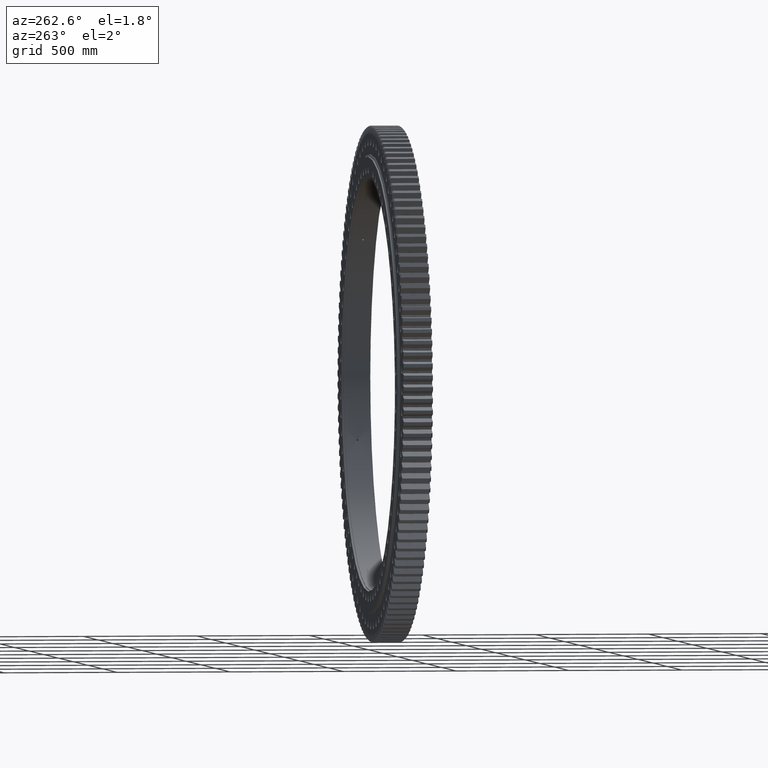
[diagram: clean part render]
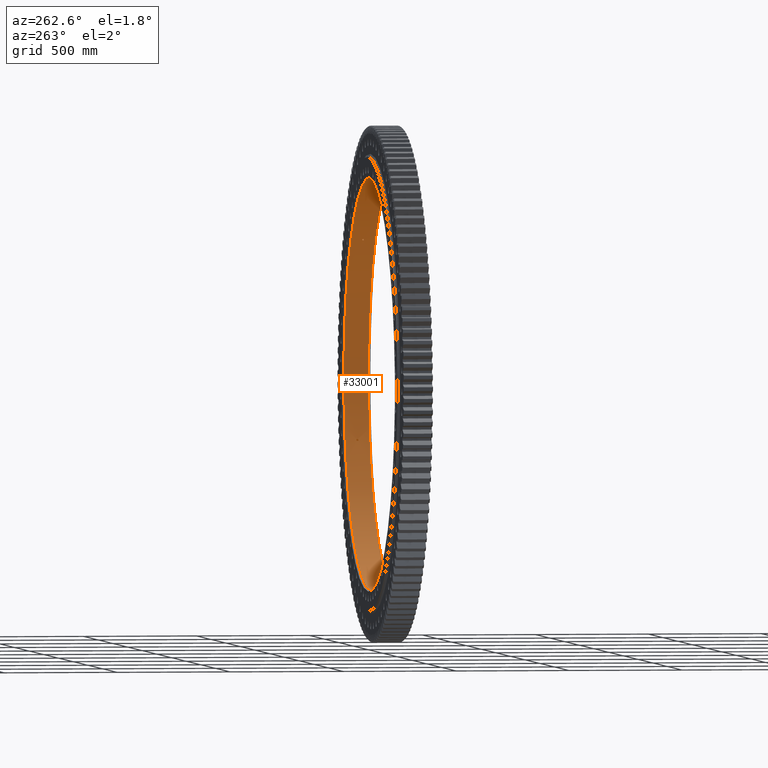
[diagram: same view with one face highlighted and labeled with its STEP entity id]
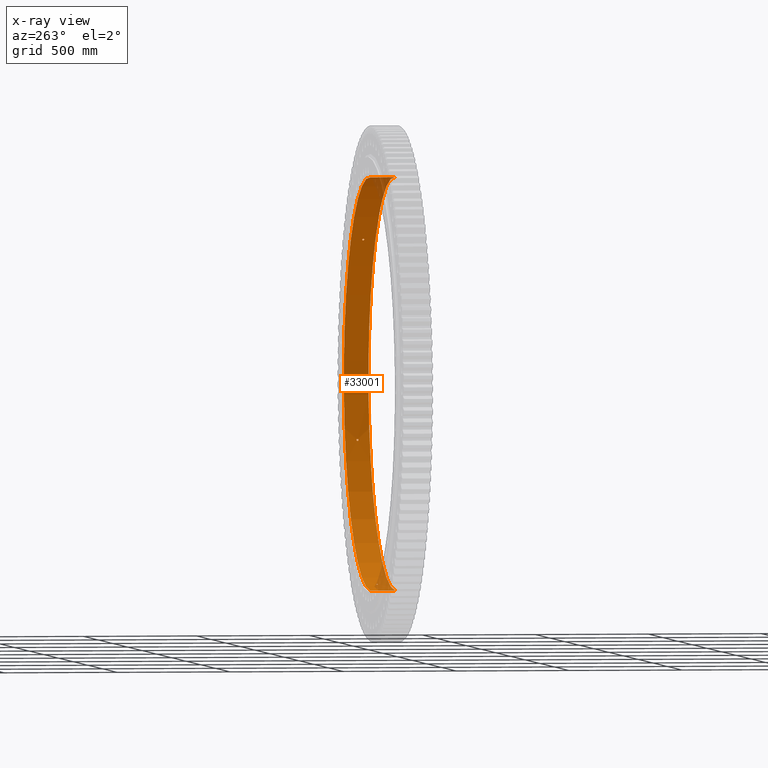
[diagram: x-ray of the same camera — body ghosted, the highlighted face saturated]
A machine part, auxiliary view. The second image highlights one B-rep face of the part: STEP entity #33001.
The next image is the same camera in x-ray: the body ghosted, the highlighted face saturated — about 5% of this face is hidden behind the body in this view.
In plain terms, the highlighted cylindrical surface (partial cylindrical patch) has radius 907.5 mm, axis along (-0, 1, -0).
Its self-contained STEP definition (entity closure, byte-faithful):
#70 = DIRECTION ( 'NONE',  ( 0.0000000000000000000, 0.0000000000000000000, 1.000000000000000000 ) ) ;
#84 = CARTESIAN_POINT ( 'NONE',  ( 667.2211728100787700, -3.577391815854714900, 615.1196765090398900 ) ) ;
#221 = ORIENTED_EDGE ( 'NONE', *, *, #25455, .T. ) ;
#248 = CARTESIAN_POINT ( 'NONE',  ( 670.9272961274414200, -3.581694275460510100, 611.0751779239532200 ) ) ;
#547 = CARTESIAN_POINT ( 'NONE',  ( 671.8046610760060300, 1.995678374227336100, 610.1104491128613700 ) ) ;
#593 = CARTESIAN_POINT ( 'NONE',  ( 192.4688175080640600, 1.995678374227333900, -886.8551274290478000 ) ) ;
#698 = CARTESIAN_POINT ( 'NONE',  ( 668.6804617742004700, 4.470845106206326100, 613.5330254549539900 ) ) ;
#752 = CARTESIAN_POINT ( 'NONE',  ( 196.9949552176105100, 4.470845106206327900, -885.8607796382452800 ) ) ;
#811 = VERTEX_POINT ( 'NONE', #25375 ) ;
#852 = CARTESIAN_POINT ( 'NONE',  ( 666.0507917688385100, 0.5919602825530700900, 616.3867260828498000 ) ) ;
#906 = CARTESIAN_POINT ( 'NONE',  ( 200.7811674588448900, 0.5919602825530616600, -885.0102689239798800 ) ) ;
#1175 = EDGE_CURVE ( 'NONE', #811, #17550, #36876, .T. ) ;
#1315 = CARTESIAN_POINT ( 'NONE',  ( 866.5119588961893000, -2.972153781786546200, -269.6540710962706800 ) ) ;
#1475 = CARTESIAN_POINT ( 'NONE',  ( 864.8969229614015100, -4.045624644837601200, -274.7901692872510500 ) ) ;
#1544 = CARTESIAN_POINT ( 'NONE',  ( 864.2045563682553400, 1.450668166330355800, -276.9598301423727700 ) ) ;
#1674 = CARTESIAN_POINT ( 'NONE',  ( 865.5859129809945200, 4.500103743723852500, -272.6121116075910900 ) ) ;
#1835 = CARTESIAN_POINT ( 'NONE',  ( 866.7979077964694200, 1.168558873226582800, -268.7334001323513300 ) ) ;
#2703 = CARTESIAN_POINT ( 'NONE',  ( 197.8381517343056500, -4.268830616815535000, -885.6728457622803000 ) ) ;
#2860 = CARTESIAN_POINT ( 'NONE',  ( 192.9282412334280300, -2.750357013386715000, -886.7553049025465300 ) ) ;
#2919 = EDGE_LOOP ( 'NONE', ( #221, #14377 ) ) ;
#3083 = B_SPLINE_CURVE_WITH_KNOTS ( 'NONE', 3,
 ( #11465, #8106, #41356, #21449, #1544, #24847, #4870, #28188, #8259, #31501, #11592, #34821, #14934, #38179, #18248, #41511, #21620, #1674, #24976, #5036, #28332, #8383, #31646, #11749, #34950, #15076, #38339, #18404, #41640, #21775, #1835, #25112, #5177, #28489 ),
 .UNSPECIFIED., .F., .F.,
 ( 4, 2, 2, 2, 2, 2, 2, 2, 2, 2, 2, 2, 2, 2, 2, 2, 4 ),
 ( 2.512242528640803700E-017, 0.0008793174597105349500, 0.001758634919421044700, 0.002637952379131555400, 0.003517269838842066100, 0.004396587298552576300, 0.005275904758263087400, 0.006155222217973597600, 0.007034539677684108700, 0.007913857137394618100, 0.008793174597105126600, 0.009672492056815636800, 0.01055180951652614700, 0.01143112697623665700, 0.01231044443594716600, 0.01318976189565767600, 0.01406907935536818800 ),
 .UNSPECIFIED. ) ;
#3229 = B_SPLINE_CURVE_WITH_KNOTS ( 'NONE', 3,
 ( #37053, #30369, #7113, #40413, #20476, #547, #23880, #3922, #27201, #7261, #30526, #10628, #33833, #13982, #37215, #17281, #40553, #20630, #698, #23998, #4068, #27351, #7394, #30669, #10782, #33976, #14105, #37370, #17429, #40683, #20770, #852, #24143, #4186 ),
 .UNSPECIFIED., .F., .F.,
 ( 4, 2, 2, 2, 2, 2, 2, 2, 2, 2, 2, 2, 2, 2, 2, 2, 4 ),
 ( 3.062279635763591100E-017, 0.0008793174597105263800, 0.001758634919421022200, 0.002637952379131517200, 0.003517269838842012300, 0.004396587298552506000, 0.005275904758263001500, 0.006155222217973496100, 0.007034539677683991600, 0.007913857137394488000, 0.008793174597104982600, 0.009672492056815480700, 0.01055180951652597500, 0.01143112697623647200, 0.01231044443594696600, 0.01318976189565746300, 0.01406907935536795700 ),
 .UNSPECIFIED. ) ;
#3470 = CARTESIAN_POINT ( 'NONE',  ( 667.7277792492287700, -4.042877831916333900, 614.5697168110343700 ) ) ;
#3615 = CARTESIAN_POINT ( 'NONE',  ( 671.3631533650924400, -2.976676943403616400, 610.5962737434192600 ) ) ;
#3922 = CARTESIAN_POINT ( 'NONE',  ( 671.4920404737667900, 2.743367053977650000, 610.4545161206533500 ) ) ;
#3974 = CARTESIAN_POINT ( 'NONE',  ( 192.9230985785353600, 2.743367053977607800, -886.7564235496583900 ) ) ;
#4068 = CARTESIAN_POINT ( 'NONE',  ( 668.1002946109420000, 4.270949597112233300, 614.1647340520219100 ) ) ;
#4107 = CARTESIAN_POINT ( 'NONE',  ( 197.8321144920893500, 4.270949597112228900, -885.6741944349551000 ) ) ;
#4186 = CARTESIAN_POINT ( 'NONE',  ( 666.0308013488261200, 1.386433358244330000E-008, 616.4083238038244900 ) ) ;
#4227 = CARTESIAN_POINT ( 'NONE',  ( 200.8098668438789500, 1.386433358244329800E-008, -885.0037555729035100 ) ) ;
#4404 = DIRECTION ( 'NONE',  ( -0.0000000000000000000, 1.000000000000000000, -2.727064569436389700E-017 ) ) ;
#4521 = CARTESIAN_POINT ( 'NONE',  ( 866.8406681927084500, -0.2936295937033693300, -268.5954317690802800 ) ) ;
#4662 = CARTESIAN_POINT ( 'NONE',  ( 866.3198526295333300, -3.577391815854745100, -270.2706473418574000 ) ) ;
#4791 = CARTESIAN_POINT ( 'NONE',  ( 864.6702757679595400, -3.581694275460515400, -275.5024935767944500 ) ) ;
#4870 = CARTESIAN_POINT ( 'NONE',  ( 864.3156358126916500, 2.254168072660464700, -276.6130119163357800 ) ) ;
#5036 = CARTESIAN_POINT ( 'NONE',  ( 865.8484435542253600, 4.355942463367350500, -271.7771257431217600 ) ) ;
#5177 = CARTESIAN_POINT ( 'NONE',  ( 866.8406681927089000, 0.2936959049994076800, -268.5954317690803900 ) ) ;
#5323 = ORIENTED_EDGE ( 'NONE', *, *, #29451, .T. ) ;
#5333 = CARTESIAN_POINT ( 'NONE',  ( 666.0308013488261200, 1.386433358244330000E-008, 616.4083238038244900 ) ) ;
#5605 = FACE_BOUND ( 'NONE', #31904, .T. ) ;
#5784 = CARTESIAN_POINT ( 'NONE',  ( 0.0000000000000000000, -53.99999999999999300, 907.5000000000000000 ) ) ;
#5913 = CARTESIAN_POINT ( 'NONE',  ( 200.8098668438789500, 1.386433358244329800E-008, -885.0037555729035100 ) ) ;
#6041 = CARTESIAN_POINT ( 'NONE',  ( 0.0000000000000000000, 54.99999999999984400, 907.5000000000000000 ) ) ;
#6057 = EDGE_CURVE ( 'NONE', #11412, #811, #10582, .T. ) ;
#6077 = CARTESIAN_POINT ( 'NONE',  ( 196.9974198342595500, -4.470446199383379900, -885.8602312391857400 ) ) ;
#6212 = CARTESIAN_POINT ( 'NONE',  ( 192.4696080708756900, -1.997034175586931200, -886.8549557907997500 ) ) ;
#6684 = VERTEX_POINT ( 'NONE', #5784 ) ;
#6791 = CARTESIAN_POINT ( 'NONE',  ( 668.2897468992695200, -4.355729318804304000, 613.9585872856650900 ) ) ;
#6933 = CARTESIAN_POINT ( 'NONE',  ( 671.7096784108341600, -2.259570858818499100, 610.2150317449131800 ) ) ;
#7113 = CARTESIAN_POINT ( 'NONE',  ( 672.0915085728017900, 0.5896827707127979500, 609.7944386200695100 ) ) ;
#7261 = CARTESIAN_POINT ( 'NONE',  ( 671.0846603473279400, 3.390113919888732700, 610.9023422460233000 ) ) ;
#7304 = CARTESIAN_POINT ( 'NONE',  ( 193.5146174428034300, 3.390113919888723800, -886.6275350738499100 ) ) ;
#7394 = CARTESIAN_POINT ( 'NONE',  ( 667.5529261211266900, 3.904602537100674700, 614.7596280565813900 ) ) ;
#7446 = CARTESIAN_POINT ( 'NONE',  ( 198.6209920575047100, 3.904602537100659600, -885.4976064198236800 ) ) ;
#7609 = DIRECTION ( 'NONE',  ( -0.0000000000000000000, 1.000000000000000000, -2.727064569436389700E-017 ) ) ;
#7625 = CARTESIAN_POINT ( 'NONE',  ( 0.0000000000000000000, 31.02910628019326800, 907.5000000000000000 ) ) ;
#7642 = DIRECTION ( 'NONE',  ( 0.0000000000000000000, -1.000000000000000000, 0.0000000000000000000 ) ) ;
#8013 = CARTESIAN_POINT ( 'NONE',  ( 866.0968767795781100, -4.042877831916303700, -270.9843612368847500 ) ) ;
#8106 = CARTESIAN_POINT ( 'NONE',  ( 864.1343159971700100, 0.2973259736361877900, -277.1788843258142900 ) ) ;
#8170 = CARTESIAN_POINT ( 'NONE',  ( 864.4734612004637000, -2.976676943403588900, -276.1194091072907200 ) ) ;
#8236 = EDGE_CURVE ( 'NONE', #31822, #23170, #3229, .T. ) ;
#8259 = CARTESIAN_POINT ( 'NONE',  ( 864.4730118256154600, 2.974980547349849800, -276.1208158403039200 ) ) ;
#8383 = CARTESIAN_POINT ( 'NONE',  ( 866.0952601633775900, 4.045567043084804300, -270.9895284599556400 ) ) ;
#8488 = EDGE_CURVE ( 'NONE', #38389, #13445, #16616, .T. ) ;
#9162 = VERTEX_POINT ( 'NONE', #30893 ) ;
#9311 = CARTESIAN_POINT ( 'NONE',  ( 200.5856543330591000, -1.449882427493610200, -885.0546072599011000 ) ) ;
#9435 = CARTESIAN_POINT ( 'NONE',  ( 196.1329898898535800, -4.500248244149611700, -886.0520234745547400 ) ) ;
#9582 = CARTESIAN_POINT ( 'NONE',  ( 192.1655185107750900, -1.173647320705858200, -886.9208909961605500 ) ) ;
#10046 = CARTESIAN_POINT ( 'NONE',  ( 666.1282564387308900, -1.165408985735074900, 616.3030093075271900 ) ) ;
#10189 = CARTESIAN_POINT ( 'NONE',  ( 668.8761794298187600, -4.499748536801098100, 613.3196512568754300 ) ) ;
#10344 = CARTESIAN_POINT ( 'NONE',  ( 671.9552764981847300, -1.455744730754474600, 609.9445622578380200 ) ) ;
#10528 = CARTESIAN_POINT ( 'NONE',  ( 192.0232027797995000, 1.386434169333851500E-008, -886.9517120983464300 ) ) ;
#10582 = LINE ( 'NONE', #27132, #19388 ) ;
#10628 = CARTESIAN_POINT ( 'NONE',  ( 670.6007203301650200, 3.905345695955502600, 611.4335486451077500 ) ) ;
#10683 = CARTESIAN_POINT ( 'NONE',  ( 194.2166256876450300, 3.905345695955512400, -886.4740339246212700 ) ) ;
#10782 = CARTESIAN_POINT ( 'NONE',  ( 667.0683646142787200, 3.392751207313588600, 615.2853736852224500 ) ) ;
#10838 = CARTESIAN_POINT ( 'NONE',  ( 199.3185818812606300, 3.392751207313584600, -885.3408366595180000 ) ) ;
#11041 = EDGE_CURVE ( 'NONE', #23170, #31822, #31121, .T. ) ;
#11400 = CARTESIAN_POINT ( 'NONE',  ( 865.8486069106257900, -4.355729318804276500, -271.7766042606095300 ) ) ;
#11412 = VERTEX_POINT ( 'NONE', #26231 ) ;
#11465 = CARTESIAN_POINT ( 'NONE',  ( 864.1343159971698900, 1.386434988001424900E-008, -277.1788843258142900 ) ) ;
#11518 = CARTESIAN_POINT ( 'NONE',  ( 864.3165584676388600, -2.259570858818472900, -276.6101295992037900 ) ) ;
#11592 = CARTESIAN_POINT ( 'NONE',  ( 864.6681059691369500, 3.576390744989199600, -275.5093048080790900 ) ) ;
#11749 = CARTESIAN_POINT ( 'NONE',  ( 866.3192884625893800, 3.578756317312463700, -270.2724549391174900 ) ) ;
#12623 = CARTESIAN_POINT ( 'NONE',  ( 200.2314202219853900, -2.252548628519183400, -885.1348233113386600 ) ) ;
#12781 = CARTESIAN_POINT ( 'NONE',  ( 195.2848078206290600, -4.357379624262325300, -886.2393449223874300 ) ) ;
#12936 = CARTESIAN_POINT ( 'NONE',  ( 192.0232027797995900, -0.2972588430780981300, -886.9517120983468900 ) ) ;
#13380 = CARTESIAN_POINT ( 'NONE',  ( 666.3391077090486800, -1.991443744958442300, 616.0750409598724700 ) ) ;
#13431 = FACE_BOUND ( 'NONE', #29375, .T. ) ;
#13445 = VERTEX_POINT ( 'NONE', #14626 ) ;
#13516 = CARTESIAN_POINT ( 'NONE',  ( 669.4753320100005600, -4.471227435655848100, 612.6655796469247000 ) ) ;
#13647 = CARTESIAN_POINT ( 'NONE',  ( 672.0915151301877600, -0.5914352569063667800, 609.7944314930624600 ) ) ;
#13982 = CARTESIAN_POINT ( 'NONE',  ( 670.0590709117092300, 4.269502541424985000, 612.0270948365196100 ) ) ;
#14026 = CARTESIAN_POINT ( 'NONE',  ( 195.0014764769551900, 4.269502541425003600, -886.3017248639995400 ) ) ;
#14105 = CARTESIAN_POINT ( 'NONE',  ( 666.6568177524139900, 2.744954435737160000, 615.7312432379786700 ) ) ;
#14147 = CARTESIAN_POINT ( 'NONE',  ( 199.9104896716538100, 2.744954435737206700, -885.2073613986734700 ) ) ;
#14377 = ORIENTED_EDGE ( 'NONE', *, *, #28059, .T. ) ;
#14559 = CARTESIAN_POINT ( 'NONE',  ( 866.7981907084806600, -1.165408985735065800, -268.7324876008145800 ) ) ;
#14626 = CARTESIAN_POINT ( 'NONE',  ( 192.0232027797995000, 1.386434169333851500E-008, -886.9517120983464300 ) ) ;
#14692 = CARTESIAN_POINT ( 'NONE',  ( 865.5884883435752500, -4.499748536801099000, -272.6039377440658300 ) ) ;
#14854 = CARTESIAN_POINT ( 'NONE',  ( 864.2051240645586200, -1.455744730754449500, -276.9580585255077900 ) ) ;
#14934 = CARTESIAN_POINT ( 'NONE',  ( 864.8967134778150700, 4.045122941605314700, -274.7908265214961700 ) ) ;
#15076 = CARTESIAN_POINT ( 'NONE',  ( 866.5118948205781600, 2.972768528701731600, -269.6542791697981400 ) ) ;
#15970 = CARTESIAN_POINT ( 'NONE',  ( 199.7287036448271100, -2.972153781786560000, -885.2484046352530000 ) ) ;
#16113 = CARTESIAN_POINT ( 'NONE',  ( 194.4731941677130500, -4.045624644837619000, -886.4177915831923000 ) ) ;
#16189 = EDGE_CURVE ( 'NONE', #6684, #11412, #33275, .T. ) ;
#16616 = B_SPLINE_CURVE_WITH_KNOTS ( 'NONE', 3,
 ( #5913, #25885, #22517, #29206, #9311, #32514, #12623, #35898, #15970, #39209, #19279, #42575, #22668, #2703, #26030, #6077, #29343, #9435, #32672, #12781, #36023, #16113, #39382, #19426, #42703, #22816, #2860, #26159, #6212, #29508, #9582, #32798, #12936, #36168 ),
 .UNSPECIFIED., .F., .F.,
 ( 4, 2, 2, 2, 2, 2, 2, 2, 2, 2, 2, 2, 2, 2, 2, 2, 4 ),
 ( 0.01406907935536808200, 0.01494819836389204600, 0.01582731737241600800, 0.01670643638093997200, 0.01758555538946393300, 0.01846467439798789600, 0.01934379340651186000, 0.02022291241503582100, 0.02110203142355978500, 0.02198115043208374900, 0.02286026944060771300, 0.02373938844913167600, 0.02461850745765564000, 0.02549762646617960100, 0.02637674547470356100, 0.02725586448322752500, 0.02813498349175148600 ),
 .UNSPECIFIED. ) ;
#16683 = CARTESIAN_POINT ( 'NONE',  ( 666.6568920230838600, -2.745436259879996000, 615.7311632527867000 ) ) ;
#16815 = CARTESIAN_POINT ( 'NONE',  ( 670.0557286285995800, -4.271337888731389800, 612.0307549600860300 ) ) ;
#16911 = ORIENTED_EDGE ( 'NONE', *, *, #6057, .F. ) ;
#16970 = CARTESIAN_POINT ( 'NONE',  ( 672.1111132173670100, 1.386431552185691500E-008, 609.7728277725333300 ) ) ;
#17191 = CARTESIAN_POINT ( 'NONE',  ( 192.0517206450458900, 0.5896827707127838500, -886.9455394018888200 ) ) ;
#17281 = CARTESIAN_POINT ( 'NONE',  ( 669.4757232258704100, 4.471354371842077800, 612.6651535574817400 ) ) ;
#17330 = CARTESIAN_POINT ( 'NONE',  ( 195.8457253813339500, 4.471354371842090300, -886.1155603093053500 ) ) ;
#17429 = CARTESIAN_POINT ( 'NONE',  ( 666.3400424315308300, 1.994552828251700900, 616.0740301369926300 ) ) ;
#17486 = CARTESIAN_POINT ( 'NONE',  ( 200.3657394947260300, 1.994552828251692200, -885.1044193730035700 ) ) ;
#17550 = VERTEX_POINT ( 'NONE', #6041 ) ;
#17888 = CARTESIAN_POINT ( 'NONE',  ( 866.7061899633118900, -1.991443744958425000, -269.0290743311570100 ) ) ;
#18044 = CARTESIAN_POINT ( 'NONE',  ( 865.3216220035548100, -4.471227435655853500, -273.4498549042215200 ) ) ;
#18185 = CARTESIAN_POINT ( 'NONE',  ( 864.1432263243747200, -0.5914352569063382500, -277.1511100241866100 ) ) ;
#18248 = CARTESIAN_POINT ( 'NONE',  ( 865.1462212982281700, 4.355843325294857000, -274.0042885536871600 ) ) ;
#18404 = CARTESIAN_POINT ( 'NONE',  ( 866.6640298671743500, 2.257522974567105500, -269.1648860634526300 ) ) ;
#18541 = AXIS2_PLACEMENT_3D ( 'NONE', #27546, #7609, #30853 ) ;
#18848 = DIRECTION ( 'NONE',  ( -0.0000000000000000000, 1.000000000000000000, -2.727064569436389700E-017 ) ) ;
#19279 = CARTESIAN_POINT ( 'NONE',  ( 199.0986798194511200, -3.577391815854713600, -885.3903238508962700 ) ) ;
#19362 = ORIENTED_EDGE ( 'NONE', *, *, #11041, .T. ) ;
#19388 = VECTOR ( 'NONE', #33766, 1000.000000000000000 ) ;
#19426 = CARTESIAN_POINT ( 'NONE',  ( 193.7429796405146800, -3.581694275460520300, -886.5776715007465300 ) ) ;
#20041 = CARTESIAN_POINT ( 'NONE',  ( 667.0644114270977500, -3.387315498573283200, 615.2896585969275500 ) ) ;
#20191 = CARTESIAN_POINT ( 'NONE',  ( 670.5979708714384100, -3.907537596810096000, 611.4365635344194100 ) ) ;
#20212 = AXIS2_PLACEMENT_3D ( 'NONE', #22252, #18848, #25582 ) ;
#20476 = CARTESIAN_POINT ( 'NONE',  ( 671.9565269152440100, 1.450668166330332200, 609.9431848099853800 ) ) ;
#20529 = CARTESIAN_POINT ( 'NONE',  ( 192.2480294530078900, 1.450668166330330500, -886.9030149523565600 ) ) ;
#20630 = CARTESIAN_POINT ( 'NONE',  ( 668.8819705219882500, 4.500103743723851600, 613.3133339956937100 ) ) ;
#20675 = CARTESIAN_POINT ( 'NONE',  ( 196.7039424590027700, 4.500103743723854200, -885.9254456032839500 ) ) ;
#20770 = CARTESIAN_POINT ( 'NONE',  ( 666.1289052582178600, 1.168558873226575900, 616.3023080327701600 ) ) ;
#20812 = CARTESIAN_POINT ( 'NONE',  ( 200.6690025382481200, 1.168558873226565300, -885.0357081651201300 ) ) ;
#21196 = CYLINDRICAL_SURFACE ( 'NONE', #20212, 907.5000000000000000 ) ;
#21238 = CARTESIAN_POINT ( 'NONE',  ( 866.5672752901977000, -2.745436259879991100, -269.4762224735787900 ) ) ;
#21369 = CARTESIAN_POINT ( 'NONE',  ( 865.0620460071025900, -4.271337888731364000, -274.2699054636183900 ) ) ;
#21449 = CARTESIAN_POINT ( 'NONE',  ( 864.1781377123579700, 1.164864495614477600, -277.0422342669620500 ) ) ;
#21517 = CARTESIAN_POINT ( 'NONE',  ( 864.1343159971698900, 1.386434988001424900E-008, -277.1788843258142900 ) ) ;
#21620 = CARTESIAN_POINT ( 'NONE',  ( 865.4093935523735600, 4.499895718877850100, -273.1719562795649400 ) ) ;
#21775 = CARTESIAN_POINT ( 'NONE',  ( 866.7727214991380200, 1.449115541588771300, -268.8146424990043800 ) ) ;
#22252 = CARTESIAN_POINT ( 'NONE',  ( 0.0000000000000000000, 31.02910628019324300, -1.692367527159823000E-015 ) ) ;
#22517 = CARTESIAN_POINT ( 'NONE',  ( 200.7821091180550500, -0.5854521619952171000, -885.0100552907426800 ) ) ;
#22668 = CARTESIAN_POINT ( 'NONE',  ( 198.3690975303457800, -4.042877831916314300, -885.5540780479178700 ) ) ;
#22685 = VECTOR ( 'NONE', #4404, 1000.000000000000000 ) ;
#22816 = CARTESIAN_POINT ( 'NONE',  ( 193.1103078353679600, -2.976676943403616400, -886.7156828507089600 ) ) ;
#23170 = VERTEX_POINT ( 'NONE', #5333 ) ;
#23221 = CARTESIAN_POINT ( 'NONE',  ( 864.1343159971698900, 1.386434988001424900E-008, -277.1788843258142900 ) ) ;
#23313 = FACE_BOUND ( 'NONE', #2919, .T. ) ;
#23402 = CARTESIAN_POINT ( 'NONE',  ( 667.5527902643526700, -3.904567218162359000, 614.7597759165122400 ) ) ;
#23534 = CARTESIAN_POINT ( 'NONE',  ( 671.0833730105058500, -3.391803603721272400, 610.9037564743821300 ) ) ;
#23807 = ORIENTED_EDGE ( 'NONE', *, *, #25834, .T. ) ;
#23880 = CARTESIAN_POINT ( 'NONE',  ( 671.7117132432185800, 2.254168072660506900, 610.2127915437237100 ) ) ;
#23918 = CARTESIAN_POINT ( 'NONE',  ( 192.6039225694694300, 2.254168072660457600, -886.8258034600585200 ) ) ;
#23998 = CARTESIAN_POINT ( 'NONE',  ( 668.2901168381723700, 4.355942463367343400, 613.9581850736163900 ) ) ;
#24046 = CARTESIAN_POINT ( 'NONE',  ( 197.5583267160496300, 4.355942463367348700, -885.7353108167373000 ) ) ;
#24143 = CARTESIAN_POINT ( 'NONE',  ( 666.0308013488262300, 0.2936959049994049600, 616.4083238038244900 ) ) ;
#24196 = CARTESIAN_POINT ( 'NONE',  ( 200.8098668438790600, 0.2936959049994065100, -885.0037555729037400 ) ) ;
#24604 = CARTESIAN_POINT ( 'NONE',  ( 866.3886807443418500, -3.387315498573243700, -270.0498969579194900 ) ) ;
#24760 = CARTESIAN_POINT ( 'NONE',  ( 864.8185822591837000, -3.907537596810103200, -275.0365967337550000 ) ) ;
#24847 = CARTESIAN_POINT ( 'NONE',  ( 864.2734785840735900, 1.995678374227359400, -276.7446783161874500 ) ) ;
#24976 = CARTESIAN_POINT ( 'NONE',  ( 865.6754169918145900, 4.470845106206330600, -272.3277541832921400 ) ) ;
#25112 = CARTESIAN_POINT ( 'NONE',  ( 866.8319592276874300, 0.5919602825530866400, -268.6235428411307000 ) ) ;
#25375 = CARTESIAN_POINT ( 'NONE',  ( 1.111366970226223000E-013, 54.99999999999984400, -907.5000000000000000 ) ) ;
#25455 = EDGE_CURVE ( 'NONE', #27325, #9162, #3083, .T. ) ;
#25582 = DIRECTION ( 'NONE',  ( 0.0000000000000000000, 2.676157428504165100E-017, 1.000000000000000000 ) ) ;
#25779 = EDGE_LOOP ( 'NONE', ( #16911, #27435, #23807, #35278 ) ) ;
#25834 = EDGE_CURVE ( 'NONE', #6684, #17550, #31491, .T. ) ;
#25885 = CARTESIAN_POINT ( 'NONE',  ( 200.8098668438789500, -0.2936295937033745500, -885.0037555729032900 ) ) ;
#26030 = CARTESIAN_POINT ( 'NONE',  ( 197.5588600113529500, -4.355729318804281800, -885.7351915462735400 ) ) ;
#26159 = CARTESIAN_POINT ( 'NONE',  ( 192.6068800568012600, -2.259570858818511900, -886.8251613441159400 ) ) ;
#26231 = CARTESIAN_POINT ( 'NONE',  ( 1.111366970226223000E-013, -54.00000000000005000, -907.5000000000000000 ) ) ;
#26694 = ORIENTED_EDGE ( 'NONE', *, *, #8488, .T. ) ;
#26754 = CARTESIAN_POINT ( 'NONE',  ( 668.0961080050359400, -4.268830616815551000, 614.1692881208123300 ) ) ;
#26907 = CARTESIAN_POINT ( 'NONE',  ( 671.4885003695039800, -2.750357013386703000, 610.4584104668773500 ) ) ;
#27132 = CARTESIAN_POINT ( 'NONE',  ( 1.111366970226223000E-013, 31.02910628019321800, -907.5000000000000000 ) ) ;
#27201 = CARTESIAN_POINT ( 'NONE',  ( 671.3641469441939800, 2.974980547349812500, 610.5951812068777800 ) ) ;
#27253 = CARTESIAN_POINT ( 'NONE',  ( 193.1088648814179300, 2.974980547349800600, -886.7159970471807400 ) ) ;
#27325 = VERTEX_POINT ( 'NONE', #23221 ) ;
#27351 = CARTESIAN_POINT ( 'NONE',  ( 667.7314458875755500, 4.045567043084816700, 614.5657331688012200 ) ) ;
#27403 = CARTESIAN_POINT ( 'NONE',  ( 198.3638142757990600, 4.045567043084815000, -885.5552616287557200 ) ) ;
#27435 = ORIENTED_EDGE ( 'NONE', *, *, #16189, .F. ) ;
#27546 = CARTESIAN_POINT ( 'NONE',  ( 0.0000000000000000000, -54.00000000000002100, 6.264311039157393800E-016 ) ) ;
#27808 = CARTESIAN_POINT ( 'NONE',  ( 866.8406681927084500, 1.386433358244330000E-008, -268.5954317690802200 ) ) ;
#27963 = CARTESIAN_POINT ( 'NONE',  ( 866.1739783007039900, -3.904567218162381200, -270.7377867778606100 ) ) ;
#28059 = EDGE_CURVE ( 'NONE', #9162, #27325, #41444, .T. ) ;
#28113 = CARTESIAN_POINT ( 'NONE',  ( 864.5998588794095700, -3.391803603721248000, -275.7233708472572900 ) ) ;
#28188 = CARTESIAN_POINT ( 'NONE',  ( 864.4151390523059000, 2.743367053977614500, -276.3019074290061800 ) ) ;
#28332 = CARTESIAN_POINT ( 'NONE',  ( 865.9324091030346200, 4.270949597112218200, -271.5094603829346600 ) ) ;
#28489 = CARTESIAN_POINT ( 'NONE',  ( 866.8406681927084500, 1.386433358244330000E-008, -268.5954317690802200 ) ) ;
#29206 = CARTESIAN_POINT ( 'NONE',  ( 200.6699342697463600, -1.165408985735065100, -885.0354969083408600 ) ) ;
#29343 = CARTESIAN_POINT ( 'NONE',  ( 196.7123089137532200, -4.499748536801097200, -885.9235890009398400 ) ) ;
#29375 = EDGE_LOOP ( 'NONE', ( #36230, #19362 ) ) ;
#29451 = EDGE_CURVE ( 'NONE', #13445, #38389, #35352, .T. ) ;
#29508 = CARTESIAN_POINT ( 'NONE',  ( 192.2498475663703300, -1.455744730754476900, -886.9026207833446700 ) ) ;
#29931 = CARTESIAN_POINT ( 'NONE',  ( 666.0501359274234100, -0.5854521619952226500, 616.3874347670292800 ) ) ;
#30077 = CARTESIAN_POINT ( 'NONE',  ( 668.6787545383593900, -4.470446199383390600, 613.5348856760530200 ) ) ;
#30203 = CARTESIAN_POINT ( 'NONE',  ( 671.8041171515169500, -1.997034175586929000, 610.1110479412155900 ) ) ;
#30369 = CARTESIAN_POINT ( 'NONE',  ( 672.1111132173670100, 0.2973259736361792400, 609.7728277725334500 ) ) ;
#30422 = CARTESIAN_POINT ( 'NONE',  ( 192.0232027797995300, 0.2973259736361854600, -886.9517120983465500 ) ) ;
#30526 = CARTESIAN_POINT ( 'NONE',  ( 670.9321099273537400, 3.576390744989209800, 611.0698932074097900 ) ) ;
#30578 = CARTESIAN_POINT ( 'NONE',  ( 193.7359960417798000, 3.576390744989214300, -886.5791980154875800 ) ) ;
#30669 = CARTESIAN_POINT ( 'NONE',  ( 667.2224561517541600, 3.578756317312462800, 615.1182841275043500 ) ) ;
#30711 = CARTESIAN_POINT ( 'NONE',  ( 199.0968323108320400, 3.578756317312445500, -885.3907390666205400 ) ) ;
#30853 = DIRECTION ( 'NONE',  ( 0.0000000000000000000, 3.058465632576188900E-017, 1.000000000000000000 ) ) ;
#30893 = CARTESIAN_POINT ( 'NONE',  ( 866.8406681927084500, 1.386433358244330000E-008, -268.5954317690802200 ) ) ;
#31121 = B_SPLINE_CURVE_WITH_KNOTS ( 'NONE', 3,
 ( #36472, #39677, #29931, #10046, #33256, #13380, #36602, #16683, #39974, #20041, #84, #23402, #3470, #26754, #6791, #30077, #10189, #33390, #13516, #36754, #16815, #40097, #20191, #248, #23534, #3615, #26907, #6933, #30203, #10344, #33530, #13647, #36898, #16970 ),
 .UNSPECIFIED., .F., .F.,
 ( 4, 2, 2, 2, 2, 2, 2, 2, 2, 2, 2, 2, 2, 2, 2, 2, 4 ),
 ( 0.01406907935536795700, 0.01494819836389191200, 0.01582731737241586600, 0.01670643638093982300, 0.01758555538946377600, 0.01846467439798773300, 0.01934379340651168700, 0.02022291241503564000, 0.02110203142355959700, 0.02198115043208355100, 0.02286026944060750400, 0.02373938844913146100, 0.02461850745765541800, 0.02549762646617937200, 0.02637674547470332500, 0.02725586448322728200, 0.02813498349175123600 ),
 .UNSPECIFIED. ) ;
#31266 = CARTESIAN_POINT ( 'NONE',  ( 865.9342597393449500, -4.268830616815526100, -271.5035576414691100 ) ) ;
#31413 = CARTESIAN_POINT ( 'NONE',  ( 864.4167416029355300, -2.750357013386680800, -276.2968944356703100 ) ) ;
#31491 = LINE ( 'NONE', #7625, #22685 ) ;
#31501 = CARTESIAN_POINT ( 'NONE',  ( 864.5992777901349200, 3.390113919888765500, -275.7251928278279800 ) ) ;
#31646 = CARTESIAN_POINT ( 'NONE',  ( 866.1739181786344900, 3.904602537100672500, -270.7379783632437100 ) ) ;
#31675 = CARTESIAN_POINT ( 'NONE',  ( 672.1111132173670100, 1.386431552185691500E-008, 609.7728277725333300 ) ) ;
#31822 = VERTEX_POINT ( 'NONE', #31675 ) ;
#31904 = EDGE_LOOP ( 'NONE', ( #5323, #26694 ) ) ;
#32145 = FACE_OUTER_BOUND ( 'NONE', #25779, .T. ) ;
#32514 = CARTESIAN_POINT ( 'NONE',  ( 200.3670822542598800, -1.991443744958439900, -885.1041152910280500 ) ) ;
#32672 = CARTESIAN_POINT ( 'NONE',  ( 195.8462899935508400, -4.471227435655857900, -886.1154345511449700 ) ) ;
#32798 = CARTESIAN_POINT ( 'NONE',  ( 192.0517111941837800, -0.5914352569063628900, -886.9455415172481000 ) ) ;
#33001 = ADVANCED_FACE ( 'NONE', ( #32145, #5605, #23313, #13431 ), #21196, .F. ) ;
#33256 = CARTESIAN_POINT ( 'NONE',  ( 666.1869464570013400, -1.449882427493611500, 616.2395759171072300 ) ) ;
#33275 = CIRCLE ( 'NONE', #18541, 907.5000000000000000 ) ;
#33390 = CARTESIAN_POINT ( 'NONE',  ( 669.2770664586402100, -4.500248244149611700, 612.8821635020899500 ) ) ;
#33530 = CARTESIAN_POINT ( 'NONE',  ( 672.0132634944136500, -1.173647320705861800, 609.8806662598234400 ) ) ;
#33766 = DIRECTION ( 'NONE',  ( -0.0000000000000000000, 1.000000000000000000, -2.727064569436389700E-017 ) ) ;
#33833 = CARTESIAN_POINT ( 'NONE',  ( 670.4241932334445000, 4.045122941605293400, 611.6271122607122400 ) ) ;
#33885 = CARTESIAN_POINT ( 'NONE',  ( 194.4725202443671600, 4.045122941605319200, -886.4179387822071000 ) ) ;
#33976 = CARTESIAN_POINT ( 'NONE',  ( 666.7834034105137600, 2.972768528701724900, 615.5941740111127300 ) ) ;
#34023 = CARTESIAN_POINT ( 'NONE',  ( 199.7284914100609700, 2.972768528701715200, -885.2484531809095600 ) ) ;
#34434 = CARTESIAN_POINT ( 'NONE',  ( 866.8322450454820700, -0.5854521619952144400, -268.6226205237146600 ) ) ;
#34585 = CARTESIAN_POINT ( 'NONE',  ( 865.6761743726226500, -4.470446199383379900, -272.3253455631336800 ) ) ;
#34746 = CARTESIAN_POINT ( 'NONE',  ( 864.2737252223963700, -1.997034175586907000, -276.7439078495852400 ) ) ;
#34821 = CARTESIAN_POINT ( 'NONE',  ( 864.8173460178135200, 3.905345695955497700, -275.0404852795149400 ) ) ;
#34950 = CARTESIAN_POINT ( 'NONE',  ( 866.3869464955427000, 3.392751207313596600, -270.0554629742968000 ) ) ;
#35278 = ORIENTED_EDGE ( 'NONE', *, *, #1175, .F. ) ;
#35352 = B_SPLINE_CURVE_WITH_KNOTS ( 'NONE', 3,
 ( #10528, #30422, #17191, #40469, #20529, #593, #23918, #3974, #27253, #7304, #30578, #10683, #33885, #14026, #37274, #17330, #40595, #20675, #752, #24046, #4107, #27403, #7446, #30711, #10838, #34023, #14147, #37412, #17486, #40728, #20812, #906, #24196, #4227 ),
 .UNSPECIFIED., .F., .F.,
 ( 4, 2, 2, 2, 2, 2, 2, 2, 2, 2, 2, 2, 2, 2, 2, 2, 4 ),
 ( 7.818838862007804900E-018, 0.0008793174597105119600, 0.001758634919421016100, 0.002637952379131521100, 0.003517269838842026200, 0.004396587298552531200, 0.005275904758263036200, 0.006155222217973540400, 0.007034539677684046300, 0.007913857137394552200, 0.008793174597105055500, 0.009672492056815558800, 0.01055180951652606400, 0.01143112697623656900, 0.01231044443594707200, 0.01318976189565757500, 0.01406907935536808200 ),
 .UNSPECIFIED. ) ;
#35898 = CARTESIAN_POINT ( 'NONE',  ( 199.9103832671106900, -2.745436259880006600, -885.2073857263642400 ) ) ;
#36023 = CARTESIAN_POINT ( 'NONE',  ( 195.0063173784993800, -4.271337888731375500, -886.3006604237031100 ) ) ;
#36168 = CARTESIAN_POINT ( 'NONE',  ( 192.0232027797995000, 1.386434169333851500E-008, -886.9517120983464300 ) ) ;
#36230 = ORIENTED_EDGE ( 'NONE', *, *, #8236, .T. ) ;
#36446 = AXIS2_PLACEMENT_3D ( 'NONE', #38450, #7642, #70 ) ;
#36472 = CARTESIAN_POINT ( 'NONE',  ( 666.0308013488261200, 1.386433358244330000E-008, 616.4083238038244900 ) ) ;
#36602 = CARTESIAN_POINT ( 'NONE',  ( 666.4335326508741000, -2.252548628519167400, 615.9729082037489400 ) ) ;
#36754 = CARTESIAN_POINT ( 'NONE',  ( 669.8633826257497500, -4.357379624262311100, 612.2412770070236500 ) ) ;
#36876 = CIRCLE ( 'NONE', #36446, 907.5000000000000000 ) ;
#36898 = CARTESIAN_POINT ( 'NONE',  ( 672.1111132173670100, -0.2972588430780920300, 609.7728277725333300 ) ) ;
#37053 = CARTESIAN_POINT ( 'NONE',  ( 672.1111132173670100, 1.386431552185691500E-008, 609.7728277725333300 ) ) ;
#37215 = CARTESIAN_POINT ( 'NONE',  ( 669.8677852824874900, 4.355843325294841000, 612.2364613555375900 ) ) ;
#37274 = CARTESIAN_POINT ( 'NONE',  ( 195.2784360157373800, 4.355843325294853400, -886.2407499092232700 ) ) ;
#37370 = CARTESIAN_POINT ( 'NONE',  ( 666.4356440712798500, 2.257522974567044200, 615.9706233794438500 ) ) ;
#37412 = CARTESIAN_POINT ( 'NONE',  ( 200.2283857958912600, 2.257522974567092600, -885.1355094428954500 ) ) ;
#37822 = CARTESIAN_POINT ( 'NONE',  ( 866.7726007900639600, -1.449882427493592000, -268.8150313427952900 ) ) ;
#37965 = CARTESIAN_POINT ( 'NONE',  ( 865.4100563484975100, -4.500248244149610800, -273.1698599724657600 ) ) ;
#38090 = CARTESIAN_POINT ( 'NONE',  ( 864.1787820051921500, -1.173647320705836700, -277.0402247363383600 ) ) ;
#38179 = CARTESIAN_POINT ( 'NONE',  ( 865.0605473886679400, 4.269502541424992100, -274.2746300274810100 ) ) ;
#38339 = CARTESIAN_POINT ( 'NONE',  ( 866.5673074240713700, 2.744954435737213800, -269.4761181606961000 ) ) ;
#38389 = VERTEX_POINT ( 'NONE', #42743 ) ;
#38450 = CARTESIAN_POINT ( 'NONE',  ( 0.0000000000000000000, 54.99999999999984400, -2.346069276769921500E-015 ) ) ;
#39209 = CARTESIAN_POINT ( 'NONE',  ( 199.3242693172406300, -3.387315498573255200, -885.3395555548461300 ) ) ;
#39382 = CARTESIAN_POINT ( 'NONE',  ( 194.2206113877419700, -3.907537596810105800, -886.4731602681735000 ) ) ;
#39677 = CARTESIAN_POINT ( 'NONE',  ( 666.0308013488260000, -0.2936295937033784300, 616.4083238038243700 ) ) ;
#39974 = CARTESIAN_POINT ( 'NONE',  ( 666.7832552513588100, -2.972153781786588000, 615.5943335389836200 ) ) ;
#40097 = CARTESIAN_POINT ( 'NONE',  ( 670.4237287936848600, -4.045624644837642100, 611.6276222959423900 ) ) ;
#40413 = CARTESIAN_POINT ( 'NONE',  ( 672.0146816525668800, 1.164864495614474000, 609.8791035205500700 ) ) ;
#40469 = CARTESIAN_POINT ( 'NONE',  ( 192.1634560597882700, 1.164864495614465400, -886.9213377875105400 ) ) ;
#40553 = CARTESIAN_POINT ( 'NONE',  ( 669.2785505157805800, 4.499895718877851000, 612.8805413502597000 ) ) ;
#40595 = CARTESIAN_POINT ( 'NONE',  ( 196.1308430365896000, 4.499895718877849200, -886.0524976298231600 ) ) ;
#40683 = CARTESIAN_POINT ( 'NONE',  ( 666.1866700629373100, 1.449115541588772200, 616.2398748761273700 ) ) ;
#40728 = CARTESIAN_POINT ( 'NONE',  ( 200.5860514361973500, 1.449115541588764400, -885.0545173751304400 ) ) ;
#41125 = CARTESIAN_POINT ( 'NONE',  ( 866.6649528728629500, -2.252548628519165600, -269.1619151075908600 ) ) ;
#41267 = CARTESIAN_POINT ( 'NONE',  ( 865.1481904463823900, -4.357379624262321700, -273.9980679153651400 ) ) ;
#41356 = CARTESIAN_POINT ( 'NONE',  ( 864.1432292178510600, 0.5896827707127935100, -277.1511007818203300 ) ) ;
#41424 = CARTESIAN_POINT ( 'NONE',  ( 864.1343159971701200, -0.2972588430781011300, -277.1788843258143500 ) ) ;
#41444 = B_SPLINE_CURVE_WITH_KNOTS ( 'NONE', 3,
 ( #27808, #4521, #34434, #14559, #37822, #17888, #41125, #21238, #1315, #24604, #4662, #27963, #8013, #31266, #11400, #34585, #14692, #37965, #18044, #41267, #21369, #1475, #24760, #4791, #28113, #8170, #31413, #11518, #34746, #14854, #38090, #18185, #41424, #21517 ),
 .UNSPECIFIED., .F., .F.,
 ( 4, 2, 2, 2, 2, 2, 2, 2, 2, 2, 2, 2, 2, 2, 2, 2, 4 ),
 ( 0.01406907935536818800, 0.01494819836389215900, 0.01582731737241613300, 0.01670643638094010400, 0.01758555538946407500, 0.01846467439798804600, 0.01934379340651201700, 0.02022291241503599100, 0.02110203142355996200, 0.02198115043208393300, 0.02286026944060790700, 0.02373938844913187800, 0.02461850745765584900, 0.02549762646617981900, 0.02637674547470379000, 0.02725586448322776500, 0.02813498349175173500 ),
 .UNSPECIFIED. ) ;
#41511 = CARTESIAN_POINT ( 'NONE',  ( 865.3214486072078000, 4.471354371842086700, -273.4504067518248000 ) ) ;
#41640 = CARTESIAN_POINT ( 'NONE',  ( 866.7057819262601000, 1.994552828251691800, -269.0303892360119600 ) ) ;
#42575 = CARTESIAN_POINT ( 'NONE',  ( 198.6211880363482000, -3.904567218162357200, -885.4975626943716000 ) ) ;
#42703 = CARTESIAN_POINT ( 'NONE',  ( 193.5164858689003600, -3.391803603721269300, -886.6271273216384500 ) ) ;
#42743 = CARTESIAN_POINT ( 'NONE',  ( 200.8098668438789500, 1.386433358244329800E-008, -885.0037555729035100 ) ) ;